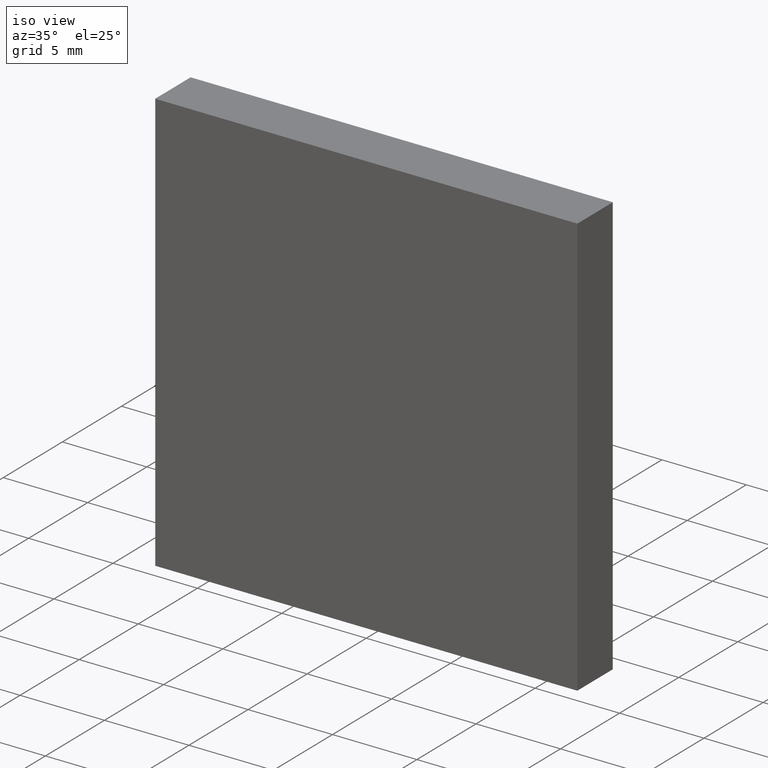
[diagram: clean part render]
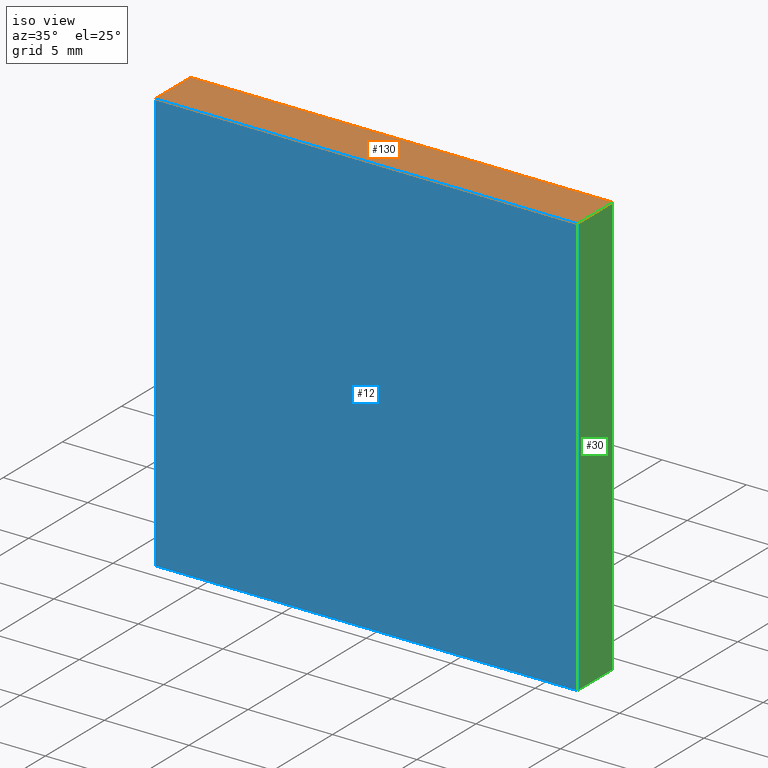
[diagram: same view with three faces highlighted in distinct colors, each labeled with its STEP entity id]
A machine part, iso view with three faces highlighted in distinct colors.
Their STEP definitions:

[orange] entity #130 — the highlighted planar face has unit normal (0, 0, -1).
#15 = VERTEX_POINT ( 'NONE', #93 ) ;
#21 = CARTESIAN_POINT ( 'NONE',  ( -12.49999999999999800, 0.0000000000000000000, 12.50000000000000400 ) ) ;
#25 = CARTESIAN_POINT ( 'NONE',  ( -12.49999999999999800, 3.000000000000000000, 12.50000000000000400 ) ) ;
#33 = VECTOR ( 'NONE', #162, 1000.000000000000000 ) ;
#37 = DIRECTION ( 'NONE',  ( -0.0000000000000000000, -1.000000000000000000, -0.0000000000000000000 ) ) ;
#38 = EDGE_CURVE ( 'NONE', #39, #83, #63, .T. ) ;
#39 = VERTEX_POINT ( 'NONE', #178 ) ;
#51 = DIRECTION ( 'NONE',  ( -1.000000000000000000, 0.0000000000000000000, -0.0000000000000000000 ) ) ;
#61 = VECTOR ( 'NONE', #106, 1000.000000000000000 ) ;
#63 = LINE ( 'NONE', #25, #33 ) ;
#67 = EDGE_CURVE ( 'NONE', #39, #98, #109, .T. ) ;
#70 = CARTESIAN_POINT ( 'NONE',  ( -12.49999999999999800, 3.000000000000000000, 12.50000000000000400 ) ) ;
#79 = CARTESIAN_POINT ( 'NONE',  ( -12.49999999999999800, 3.000000000000000000, 12.50000000000000400 ) ) ;
#83 = VERTEX_POINT ( 'NONE', #124 ) ;
#93 = CARTESIAN_POINT ( 'NONE',  ( 12.50000000000000200, 0.0000000000000000000, 12.50000000000000400 ) ) ;
#95 = ORIENTED_EDGE ( 'NONE', *, *, #153, .F. ) ;
#98 = VERTEX_POINT ( 'NONE', #172 ) ;
#102 = PLANE ( 'NONE',  #167 ) ;
#105 = LINE ( 'NONE', #119, #187 ) ;
#106 = DIRECTION ( 'NONE',  ( -0.0000000000000000000, -1.000000000000000000, -0.0000000000000000000 ) ) ;
#109 = LINE ( 'NONE', #70, #61 ) ;
#110 = VECTOR ( 'NONE', #156, 1000.000000000000000 ) ;
#111 = EDGE_LOOP ( 'NONE', ( #180, #95, #129, #126 ) ) ;
#119 = CARTESIAN_POINT ( 'NONE',  ( 12.50000000000000200, 3.000000000000000000, 12.50000000000000400 ) ) ;
#124 = CARTESIAN_POINT ( 'NONE',  ( 12.50000000000000200, 3.000000000000000000, 12.50000000000000400 ) ) ;
#126 = ORIENTED_EDGE ( 'NONE', *, *, #67, .T. ) ;
#129 = ORIENTED_EDGE ( 'NONE', *, *, #38, .F. ) ;
#130 = ADVANCED_FACE ( 'NONE', ( #168 ), #102, .F. ) ;
#146 = LINE ( 'NONE', #21, #110 ) ;
#153 = EDGE_CURVE ( 'NONE', #83, #15, #105, .T. ) ;
#156 = DIRECTION ( 'NONE',  ( 1.000000000000000000, 0.0000000000000000000, 0.0000000000000000000 ) ) ;
#157 = DIRECTION ( 'NONE',  ( 0.0000000000000000000, 0.0000000000000000000, -1.000000000000000000 ) ) ;
#162 = DIRECTION ( 'NONE',  ( 1.000000000000000000, 0.0000000000000000000, 0.0000000000000000000 ) ) ;
#167 = AXIS2_PLACEMENT_3D ( 'NONE', #79, #157, #51 ) ;
#168 = FACE_OUTER_BOUND ( 'NONE', #111, .T. ) ;
#172 = CARTESIAN_POINT ( 'NONE',  ( -12.49999999999999800, 0.0000000000000000000, 12.50000000000000400 ) ) ;
#178 = CARTESIAN_POINT ( 'NONE',  ( -12.49999999999999800, 3.000000000000000000, 12.50000000000000400 ) ) ;
#180 = ORIENTED_EDGE ( 'NONE', *, *, #185, .T. ) ;
#185 = EDGE_CURVE ( 'NONE', #98, #15, #146, .T. ) ;
#187 = VECTOR ( 'NONE', #37, 1000.000000000000000 ) ;

[blue] entity #12 — the highlighted planar face has unit normal (0, 1, 0).
#5 = VECTOR ( 'NONE', #28, 1000.000000000000000 ) ;
#6 = EDGE_CURVE ( 'NONE', #26, #132, #199, .T. ) ;
#10 = CARTESIAN_POINT ( 'NONE',  ( -12.50000000000000200, 0.0000000000000000000, -12.49999999999999600 ) ) ;
#11 = DIRECTION ( 'NONE',  ( -1.000000000000000000, -0.0000000000000000000, -0.0000000000000000000 ) ) ;
#12 = ADVANCED_FACE ( 'NONE', ( #183 ), #163, .F. ) ;
#15 = VERTEX_POINT ( 'NONE', #93 ) ;
#21 = CARTESIAN_POINT ( 'NONE',  ( -12.49999999999999800, 0.0000000000000000000, 12.50000000000000400 ) ) ;
#26 = VERTEX_POINT ( 'NONE', #82 ) ;
#28 = DIRECTION ( 'NONE',  ( 1.387778780781445700E-016, 0.0000000000000000000, 1.000000000000000000 ) ) ;
#29 = EDGE_CURVE ( 'NONE', #132, #98, #60, .T. ) ;
#46 = VECTOR ( 'NONE', #11, 1000.000000000000000 ) ;
#52 = CARTESIAN_POINT ( 'NONE',  ( -12.50000000000000200, 0.0000000000000000000, -12.49999999999999600 ) ) ;
#56 = CARTESIAN_POINT ( 'NONE',  ( 0.0000000000000000000, 0.0000000000000000000, 0.0000000000000000000 ) ) ;
#59 = EDGE_LOOP ( 'NONE', ( #123, #165, #177, #186 ) ) ;
#60 = LINE ( 'NONE', #143, #5 ) ;
#82 = CARTESIAN_POINT ( 'NONE',  ( 12.49999999999999800, 0.0000000000000000000, -12.49999999999999600 ) ) ;
#87 = CARTESIAN_POINT ( 'NONE',  ( 12.49999999999999800, 0.0000000000000000000, -12.49999999999999600 ) ) ;
#93 = CARTESIAN_POINT ( 'NONE',  ( 12.50000000000000200, 0.0000000000000000000, 12.50000000000000400 ) ) ;
#96 = AXIS2_PLACEMENT_3D ( 'NONE', #56, #166, #128 ) ;
#98 = VERTEX_POINT ( 'NONE', #172 ) ;
#100 = DIRECTION ( 'NONE',  ( -1.387778780781445700E-016, -0.0000000000000000000, -1.000000000000000000 ) ) ;
#110 = VECTOR ( 'NONE', #156, 1000.000000000000000 ) ;
#123 = ORIENTED_EDGE ( 'NONE', *, *, #200, .F. ) ;
#125 = VECTOR ( 'NONE', #100, 1000.000000000000000 ) ;
#128 = DIRECTION ( 'NONE',  ( 0.0000000000000000000, -0.0000000000000000000, 1.000000000000000000 ) ) ;
#132 = VERTEX_POINT ( 'NONE', #52 ) ;
#143 = CARTESIAN_POINT ( 'NONE',  ( -12.50000000000000200, 0.0000000000000000000, -12.49999999999999600 ) ) ;
#146 = LINE ( 'NONE', #21, #110 ) ;
#150 = LINE ( 'NONE', #87, #125 ) ;
#156 = DIRECTION ( 'NONE',  ( 1.000000000000000000, 0.0000000000000000000, 0.0000000000000000000 ) ) ;
#163 = PLANE ( 'NONE',  #96 ) ;
#165 = ORIENTED_EDGE ( 'NONE', *, *, #185, .F. ) ;
#166 = DIRECTION ( 'NONE',  ( 0.0000000000000000000, 1.000000000000000000, 0.0000000000000000000 ) ) ;
#172 = CARTESIAN_POINT ( 'NONE',  ( -12.49999999999999800, 0.0000000000000000000, 12.50000000000000400 ) ) ;
#177 = ORIENTED_EDGE ( 'NONE', *, *, #29, .F. ) ;
#183 = FACE_OUTER_BOUND ( 'NONE', #59, .T. ) ;
#185 = EDGE_CURVE ( 'NONE', #98, #15, #146, .T. ) ;
#186 = ORIENTED_EDGE ( 'NONE', *, *, #6, .F. ) ;
#199 = LINE ( 'NONE', #10, #46 ) ;
#200 = EDGE_CURVE ( 'NONE', #15, #26, #150, .T. ) ;

[green] entity #30 — the highlighted planar face has unit normal (-1, 0, 0).
#14 = EDGE_CURVE ( 'NONE', #83, #44, #97, .T. ) ;
#15 = VERTEX_POINT ( 'NONE', #93 ) ;
#24 = DIRECTION ( 'NONE',  ( -0.0000000000000000000, -1.000000000000000000, -0.0000000000000000000 ) ) ;
#26 = VERTEX_POINT ( 'NONE', #82 ) ;
#30 = ADVANCED_FACE ( 'NONE', ( #72 ), #141, .F. ) ;
#32 = ORIENTED_EDGE ( 'NONE', *, *, #153, .T. ) ;
#37 = DIRECTION ( 'NONE',  ( -0.0000000000000000000, -1.000000000000000000, -0.0000000000000000000 ) ) ;
#43 = DIRECTION ( 'NONE',  ( -1.000000000000000000, 0.0000000000000000000, 1.387778780781445400E-016 ) ) ;
#44 = VERTEX_POINT ( 'NONE', #91 ) ;
#55 = CARTESIAN_POINT ( 'NONE',  ( 12.49999999999999800, 3.000000000000000000, -12.49999999999999600 ) ) ;
#57 = EDGE_CURVE ( 'NONE', #44, #26, #73, .T. ) ;
#71 = VECTOR ( 'NONE', #179, 1000.000000000000000 ) ;
#72 = FACE_OUTER_BOUND ( 'NONE', #92, .T. ) ;
#73 = LINE ( 'NONE', #140, #201 ) ;
#75 = ORIENTED_EDGE ( 'NONE', *, *, #14, .F. ) ;
#82 = CARTESIAN_POINT ( 'NONE',  ( 12.49999999999999800, 0.0000000000000000000, -12.49999999999999600 ) ) ;
#83 = VERTEX_POINT ( 'NONE', #124 ) ;
#87 = CARTESIAN_POINT ( 'NONE',  ( 12.49999999999999800, 0.0000000000000000000, -12.49999999999999600 ) ) ;
#91 = CARTESIAN_POINT ( 'NONE',  ( 12.49999999999999800, 3.000000000000000000, -12.49999999999999600 ) ) ;
#92 = EDGE_LOOP ( 'NONE', ( #173, #189, #75, #32 ) ) ;
#93 = CARTESIAN_POINT ( 'NONE',  ( 12.50000000000000200, 0.0000000000000000000, 12.50000000000000400 ) ) ;
#97 = LINE ( 'NONE', #107, #71 ) ;
#100 = DIRECTION ( 'NONE',  ( -1.387778780781445700E-016, -0.0000000000000000000, -1.000000000000000000 ) ) ;
#105 = LINE ( 'NONE', #119, #187 ) ;
#107 = CARTESIAN_POINT ( 'NONE',  ( 12.49999999999999800, 3.000000000000000000, -12.49999999999999600 ) ) ;
#119 = CARTESIAN_POINT ( 'NONE',  ( 12.50000000000000200, 3.000000000000000000, 12.50000000000000400 ) ) ;
#121 = AXIS2_PLACEMENT_3D ( 'NONE', #55, #43, #127 ) ;
#124 = CARTESIAN_POINT ( 'NONE',  ( 12.50000000000000200, 3.000000000000000000, 12.50000000000000400 ) ) ;
#125 = VECTOR ( 'NONE', #100, 1000.000000000000000 ) ;
#127 = DIRECTION ( 'NONE',  ( 1.387778780781445400E-016, 0.0000000000000000000, 1.000000000000000000 ) ) ;
#140 = CARTESIAN_POINT ( 'NONE',  ( 12.49999999999999800, 3.000000000000000000, -12.49999999999999600 ) ) ;
#141 = PLANE ( 'NONE',  #121 ) ;
#150 = LINE ( 'NONE', #87, #125 ) ;
#153 = EDGE_CURVE ( 'NONE', #83, #15, #105, .T. ) ;
#173 = ORIENTED_EDGE ( 'NONE', *, *, #200, .T. ) ;
#179 = DIRECTION ( 'NONE',  ( -1.387778780781445700E-016, -0.0000000000000000000, -1.000000000000000000 ) ) ;
#187 = VECTOR ( 'NONE', #37, 1000.000000000000000 ) ;
#189 = ORIENTED_EDGE ( 'NONE', *, *, #57, .F. ) ;
#200 = EDGE_CURVE ( 'NONE', #15, #26, #150, .T. ) ;
#201 = VECTOR ( 'NONE', #24, 1000.000000000000000 ) ;